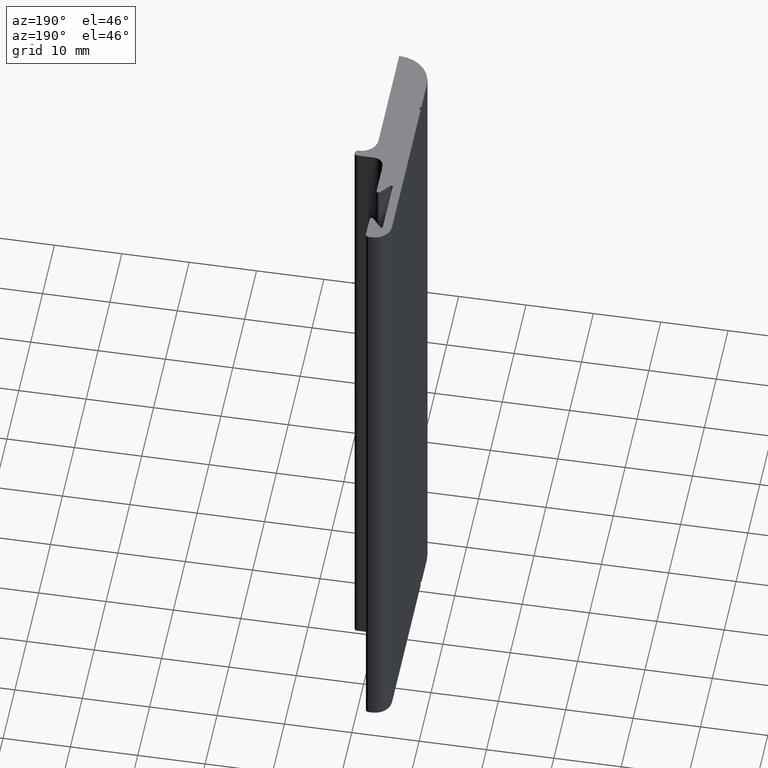
[diagram: clean part render]
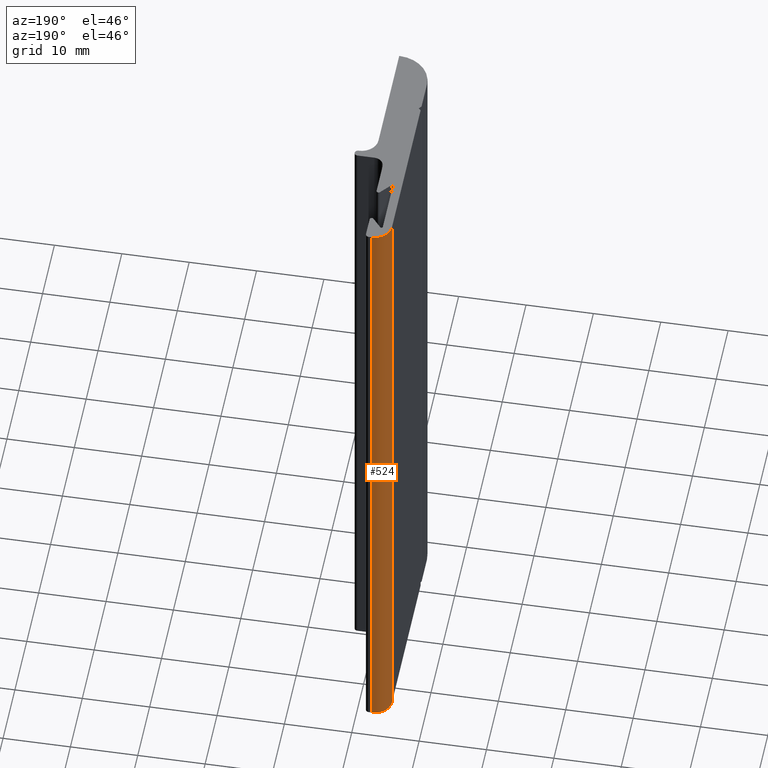
[diagram: same view with one face highlighted and labeled with its STEP entity id]
A machine part, auxiliary view. The second image highlights one B-rep face of the part: STEP entity #524.
In plain terms, the highlighted cylindrical surface (edge-blend (fillet) strip) has radius 2.5 mm, axis along (0, 0, 1).
Its self-contained STEP definition (entity closure, byte-faithful):
#466=CARTESIAN_POINT('',(-2.499998999999946,36.999999999999091,0.0));
#467=VERTEX_POINT('',#466);
#474=CARTESIAN_POINT('',(-2.499998999999946,36.999999999999091,100.0));
#475=VERTEX_POINT('',#474);
#476=CARTESIAN_POINT('',(-2.499998999999946,36.999999999999091,0.0));
#477=DIRECTION('',(0.0,0.0,1.0));
#478=VECTOR('',#477,100.0);
#479=LINE('',#476,#478);
#480=EDGE_CURVE('',#467,#475,#479,.T.);
#492=CARTESIAN_POINT('',(-2.499998999999946,34.500002499999027,0.0));
#493=DIRECTION('',(0.0,0.0,1.0));
#494=DIRECTION('',(1.0,0.0,0.0));
#495=AXIS2_PLACEMENT_3D('',#492,#493,#494);
#496=CYLINDRICAL_SURFACE('',#495,2.499997500000000);
#497=CARTESIAN_POINT('',(-4.999996499999952,34.500002499999027,0.0));
#498=VERTEX_POINT('',#497);
#499=CARTESIAN_POINT('',(-2.499998999999946,34.500002499999027,0.0));
#500=DIRECTION('',(0.0,0.0,1.0));
#501=DIRECTION('',(1.0,0.0,0.0));
#502=AXIS2_PLACEMENT_3D('',#499,#500,#501);
#503=CIRCLE('',#502,2.499997500000000);
#504=EDGE_CURVE('',#467,#498,#503,.T.);
#505=ORIENTED_EDGE('',*,*,#504,.T.);
#506=CARTESIAN_POINT('',(-4.999996499999952,34.500002499999027,100.0));
#507=VERTEX_POINT('',#506);
#508=CARTESIAN_POINT('',(-4.999996499999952,34.500002499999027,0.0));
#509=DIRECTION('',(0.0,0.0,1.0));
#510=VECTOR('',#509,100.0);
#511=LINE('',#508,#510);
#512=EDGE_CURVE('',#498,#507,#511,.T.);
#513=ORIENTED_EDGE('',*,*,#512,.T.);
#514=CARTESIAN_POINT('',(-2.499998999999946,34.500002499999027,100.0));
#515=DIRECTION('',(0.0,0.0,1.0));
#516=DIRECTION('',(1.0,0.0,0.0));
#517=AXIS2_PLACEMENT_3D('',#514,#515,#516);
#518=CIRCLE('',#517,2.499997500000000);
#519=EDGE_CURVE('',#475,#507,#518,.T.);
#520=ORIENTED_EDGE('',*,*,#519,.F.);
#521=ORIENTED_EDGE('',*,*,#480,.F.);
#522=EDGE_LOOP('',(#505,#513,#520,#521));
#523=FACE_OUTER_BOUND('',#522,.T.);
#524=ADVANCED_FACE('',(#523),#496,.T.);